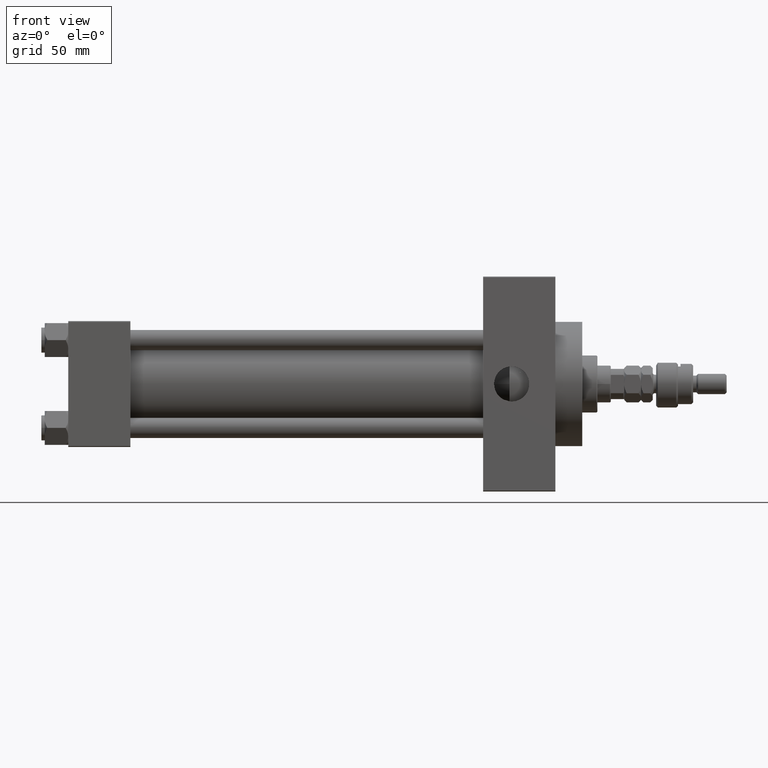
[diagram: clean part render]
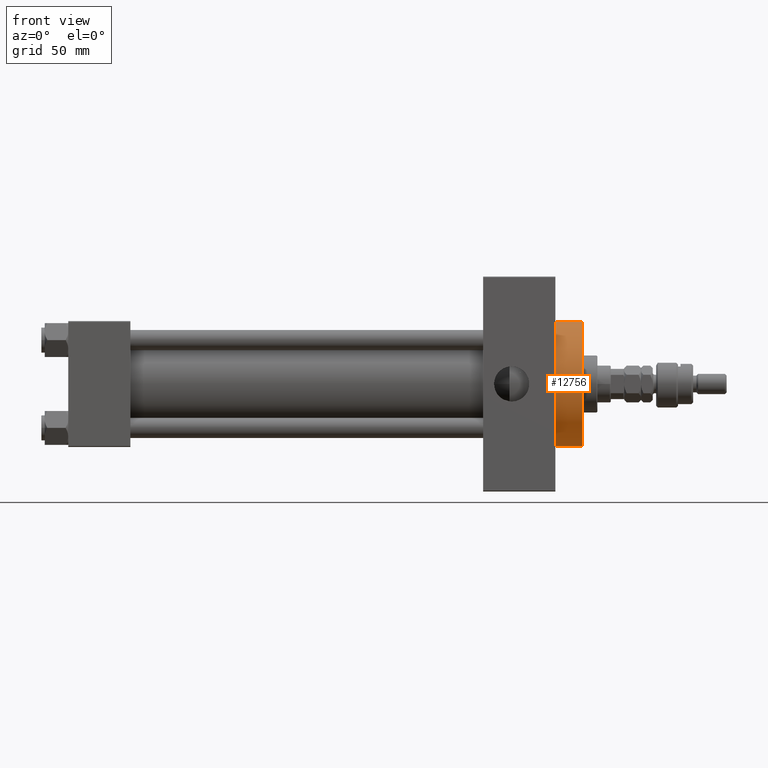
[diagram: same view with one face highlighted and labeled with its STEP entity id]
A machine part, front view. The second image highlights one B-rep face of the part: STEP entity #12756.
In plain terms, the highlighted cylindrical surface (partial cylindrical patch) has radius 37 mm, axis along (-1, -0, -0).
Its self-contained STEP definition (entity closure, byte-faithful):
#3357 = CARTESIAN_POINT ( 'NONE',  ( 290.0000000000000000, 0.000000000000000000, 37.00000000000000000 ) ) ;
#3453 = CARTESIAN_POINT ( 'NONE',  ( 306.0000000000000000, 4.531193156845206793E-15, -37.00000000000000000 ) ) ;
#5657 = AXIS2_PLACEMENT_3D ( 'NONE', #15651, #27286, #7454 ) ;
#5778 = ORIENTED_EDGE ( 'NONE', *, *, #37068, .F. ) ;
#7344 = VERTEX_POINT ( 'NONE', #14445 ) ;
#7430 = EDGE_LOOP ( 'NONE', ( #33313, #5778, #20397, #47157 ) ) ;
#7454 = DIRECTION ( 'NONE',  ( 0.000000000000000000, 0.000000000000000000, -1.000000000000000000 ) ) ;
#12009 = VERTEX_POINT ( 'NONE', #42081 ) ;
#12186 = LINE ( 'NONE', #3453, #25591 ) ;
#12756 = ADVANCED_FACE ( 'NONE', ( #39718 ), #44233, .T. ) ;
#12926 = DIRECTION ( 'NONE',  ( 0.000000000000000000, 0.000000000000000000, -1.000000000000000000 ) ) ;
#14445 = CARTESIAN_POINT ( 'NONE',  ( 290.0000000000000000, 4.531193156845206793E-15, -37.00000000000000000 ) ) ;
#15624 = DIRECTION ( 'NONE',  ( -1.000000000000000000, -0.000000000000000000, -0.000000000000000000 ) ) ;
#15651 = CARTESIAN_POINT ( 'NONE',  ( 290.0000000000000000, 0.000000000000000000, 0.000000000000000000 ) ) ;
#18587 = AXIS2_PLACEMENT_3D ( 'NONE', #28541, #28022, #12926 ) ;
#19190 = LINE ( 'NONE', #43537, #31440 ) ;
#19880 = DIRECTION ( 'NONE',  ( -1.000000000000000000, -0.000000000000000000, -0.000000000000000000 ) ) ;
#20397 = ORIENTED_EDGE ( 'NONE', *, *, #46510, .T. ) ;
#23793 = EDGE_CURVE ( 'NONE', #25314, #7344, #45406, .T. ) ;
#24098 = DIRECTION ( 'NONE',  ( 0.000000000000000000, 0.000000000000000000, 1.000000000000000000 ) ) ;
#25314 = VERTEX_POINT ( 'NONE', #3357 ) ;
#25591 = VECTOR ( 'NONE', #15624, 1000.000000000000000 ) ;
#26171 = CIRCLE ( 'NONE', #18587, 37.00000000000000000 ) ;
#27286 = DIRECTION ( 'NONE',  ( 1.000000000000000000, 0.000000000000000000, 0.000000000000000000 ) ) ;
#28022 = DIRECTION ( 'NONE',  ( 1.000000000000000000, 0.000000000000000000, 0.000000000000000000 ) ) ;
#28541 = CARTESIAN_POINT ( 'NONE',  ( 306.0000000000000000, 0.000000000000000000, 0.000000000000000000 ) ) ;
#31440 = VECTOR ( 'NONE', #35336, 1000.000000000000000 ) ;
#33313 = ORIENTED_EDGE ( 'NONE', *, *, #47358, .F. ) ;
#35336 = DIRECTION ( 'NONE',  ( -1.000000000000000000, -0.000000000000000000, -0.000000000000000000 ) ) ;
#35651 = CARTESIAN_POINT ( 'NONE',  ( 306.0000000000000000, 4.531193156845206793E-15, -37.00000000000000000 ) ) ;
#37068 = EDGE_CURVE ( 'NONE', #12009, #38736, #26171, .T. ) ;
#38736 = VERTEX_POINT ( 'NONE', #35651 ) ;
#39718 = FACE_OUTER_BOUND ( 'NONE', #7430, .T. ) ;
#42081 = CARTESIAN_POINT ( 'NONE',  ( 306.0000000000000000, 0.000000000000000000, 37.00000000000000000 ) ) ;
#43537 = CARTESIAN_POINT ( 'NONE',  ( 306.0000000000000000, 0.000000000000000000, 37.00000000000000000 ) ) ;
#44233 = CYLINDRICAL_SURFACE ( 'NONE', #47637, 37.00000000000000000 ) ;
#45406 = CIRCLE ( 'NONE', #5657, 37.00000000000000000 ) ;
#46510 = EDGE_CURVE ( 'NONE', #12009, #25314, #19190, .T. ) ;
#47157 = ORIENTED_EDGE ( 'NONE', *, *, #23793, .T. ) ;
#47358 = EDGE_CURVE ( 'NONE', #38736, #7344, #12186, .T. ) ;
#47637 = AXIS2_PLACEMENT_3D ( 'NONE', #51923, #19880, #24098 ) ;
#51923 = CARTESIAN_POINT ( 'NONE',  ( 306.0000000000000000, 0.000000000000000000, 0.000000000000000000 ) ) ;